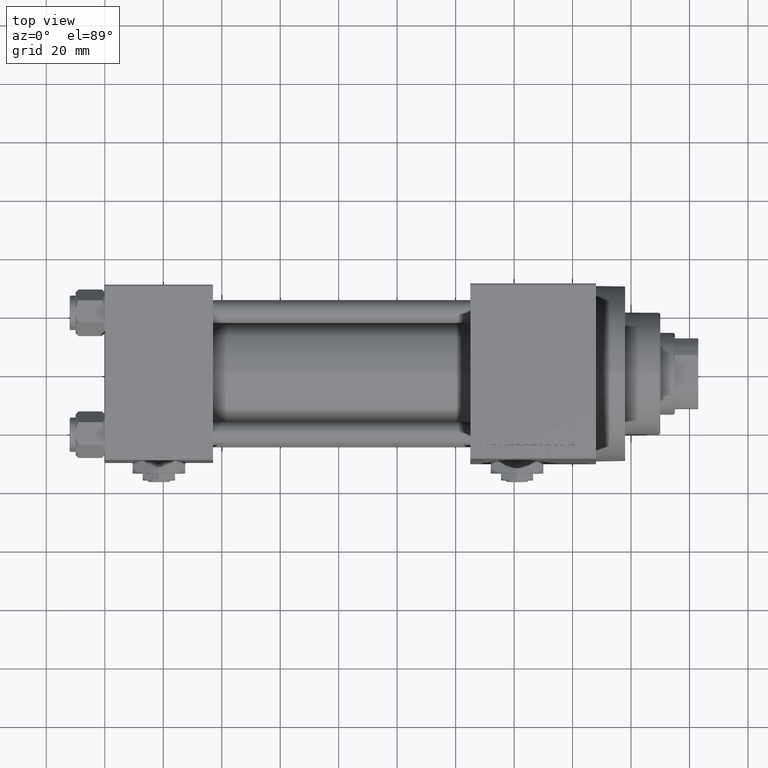
[diagram: clean part render]
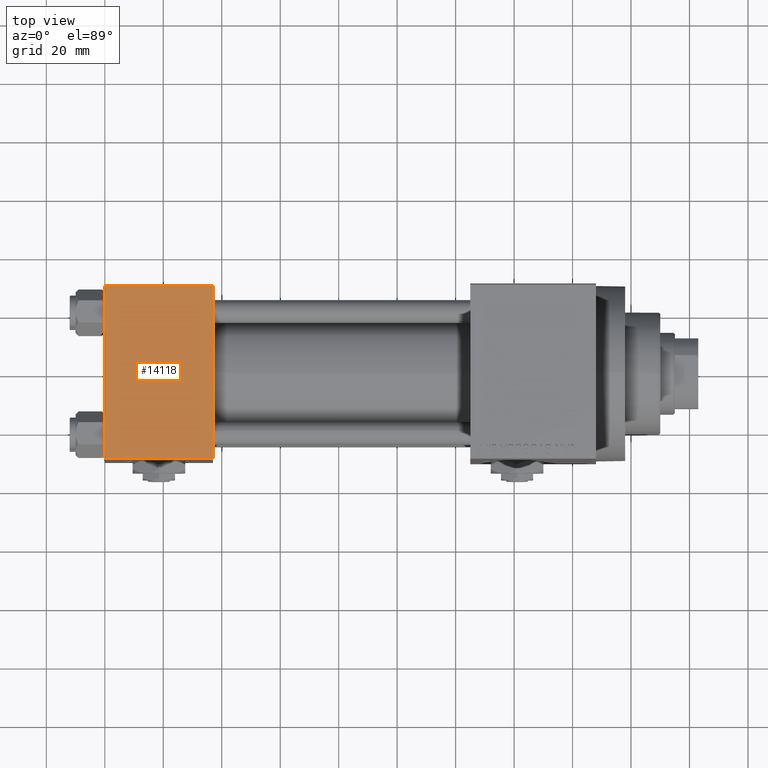
[diagram: same view with one face highlighted and labeled with its STEP entity id]
A machine part, top view. The second image highlights one B-rep face of the part: STEP entity #14118.
In plain terms, the highlighted planar face has unit normal (0, 0, -1).
Its self-contained STEP definition (entity closure, byte-faithful):
#481 = EDGE_CURVE ( 'NONE', #46285, #23919, #40268, .T. ) ;
#488 = ORIENTED_EDGE ( 'NONE', *, *, #2183, .T. ) ;
#2101 = VECTOR ( 'NONE', #44243, 1000.000000000000000 ) ;
#2183 = EDGE_CURVE ( 'NONE', #46285, #30946, #46627, .T. ) ;
#2395 = DIRECTION ( 'NONE',  ( 0.000000000000000000, -1.000000000000000000, -1.156482317317871725E-16 ) ) ;
#5892 = CARTESIAN_POINT ( 'NONE',  ( 0.000000000000000000, 29.99999999999999289, 30.00000000000000000 ) ) ;
#5967 = VECTOR ( 'NONE', #34599, 1000.000000000000000 ) ;
#6566 = FACE_OUTER_BOUND ( 'NONE', #31229, .T. ) ;
#6733 = VECTOR ( 'NONE', #2395, 1000.000000000000000 ) ;
#7065 = PLANE ( 'NONE',  #24700 ) ;
#7243 = CARTESIAN_POINT ( 'NONE',  ( 0.000000000000000000, -29.49999999999998579, 29.99999999999999289 ) ) ;
#8760 = CARTESIAN_POINT ( 'NONE',  ( 0.000000000000000000, 29.49999999999999289, 30.00000000000000000 ) ) ;
#9670 = LINE ( 'NONE', #5892, #34480 ) ;
#10819 = CARTESIAN_POINT ( 'NONE',  ( 37.00000000000000000, 29.99999999999999289, 30.00000000000000000 ) ) ;
#11410 = CARTESIAN_POINT ( 'NONE',  ( 0.000000000000000000, 29.49999999999999289, 30.00000000000000000 ) ) ;
#12596 = CARTESIAN_POINT ( 'NONE',  ( 37.00000000000000000, -29.49999999999998579, 29.99999999999999289 ) ) ;
#14118 = ADVANCED_FACE ( 'NONE', ( #6566 ), #7065, .F. ) ;
#15160 = CARTESIAN_POINT ( 'NONE',  ( 37.00000000000000000, 29.49999999999999289, 30.00000000000000000 ) ) ;
#16895 = CARTESIAN_POINT ( 'NONE',  ( 37.00000000000000000, -29.50000000000000000, 29.99999999999999289 ) ) ;
#18131 = EDGE_CURVE ( 'NONE', #30946, #24433, #9670, .T. ) ;
#23919 = VERTEX_POINT ( 'NONE', #12596 ) ;
#24433 = VERTEX_POINT ( 'NONE', #7243 ) ;
#24700 = AXIS2_PLACEMENT_3D ( 'NONE', #10819, #41688, #37908 ) ;
#25212 = DIRECTION ( 'NONE',  ( 0.000000000000000000, -1.000000000000000000, -1.156482317317871725E-16 ) ) ;
#27478 = EDGE_CURVE ( 'NONE', #24433, #23919, #35959, .T. ) ;
#29112 = ORIENTED_EDGE ( 'NONE', *, *, #18131, .T. ) ;
#30946 = VERTEX_POINT ( 'NONE', #11410 ) ;
#31229 = EDGE_LOOP ( 'NONE', ( #29112, #33825, #42332, #488 ) ) ;
#32735 = CARTESIAN_POINT ( 'NONE',  ( 37.00000000000000000, 29.99999999999999289, 30.00000000000000000 ) ) ;
#33825 = ORIENTED_EDGE ( 'NONE', *, *, #27478, .T. ) ;
#34480 = VECTOR ( 'NONE', #25212, 1000.000000000000000 ) ;
#34599 = DIRECTION ( 'NONE',  ( -1.000000000000000000, 0.000000000000000000, 0.000000000000000000 ) ) ;
#35959 = LINE ( 'NONE', #16895, #2101 ) ;
#37908 = DIRECTION ( 'NONE',  ( 0.000000000000000000, 1.000000000000000000, 1.156482317317871725E-16 ) ) ;
#40268 = LINE ( 'NONE', #32735, #6733 ) ;
#41688 = DIRECTION ( 'NONE',  ( 0.000000000000000000, 1.156482317317871725E-16, -1.000000000000000000 ) ) ;
#42332 = ORIENTED_EDGE ( 'NONE', *, *, #481, .F. ) ;
#44243 = DIRECTION ( 'NONE',  ( 1.000000000000000000, 0.000000000000000000, 0.000000000000000000 ) ) ;
#46285 = VERTEX_POINT ( 'NONE', #15160 ) ;
#46627 = LINE ( 'NONE', #8760, #5967 ) ;